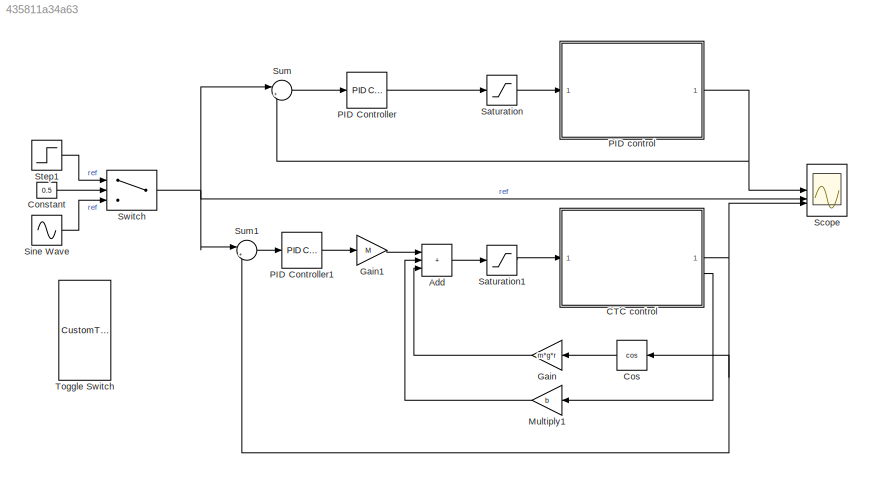
MODEL slx_435811a34a63
KIND model
CONFIG AbsTol = auto
CONFIG EnableMultiTasking = off
CONFIG FixedStep = auto
CONFIG MaxStep = auto
CONFIG MinStep = auto
CONFIG PreLoadFcn = M = 2;\nm = 1;\nr = 0.1;\nb = 0.5;\ng = 9.8
CONFIG RelTol = 1e-3
CONFIG SampleTimeConstraint = Unconstrained
CONFIG SolverName = VariableStepAuto
CONFIG StartTime = 0.0
CONFIG StopTime = 10.0
BLOCK [Sum] Add
  IconShape = rectangular
  Inputs = +++
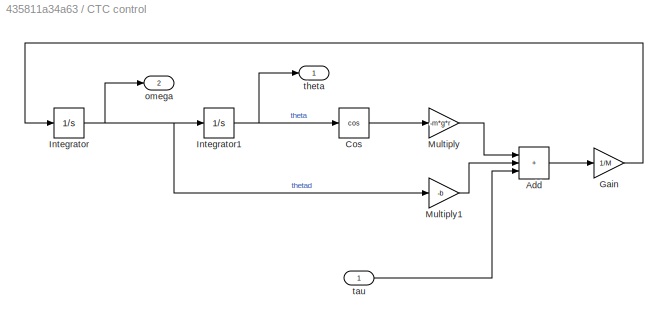
BLOCK [SubSystem] CTC control
BLOCK [Sum] CTC control/Add
  IconShape = rectangular
  Inputs = +++
BLOCK [Trigonometry] CTC control/Cos
  Operator = cos
BLOCK [Gain] CTC control/Gain
  Gain = 1/M
BLOCK [Integrator] CTC control/Integrator
BLOCK [Integrator] CTC control/Integrator1
BLOCK [Gain] CTC control/Multiply
  Gain = -m*g*r
BLOCK [Gain] CTC control/Multiply1
  Gain = -b
BLOCK [Outport] CTC control/omega
  Port = 2
BLOCK [Inport] CTC control/tau
BLOCK [Outport] CTC control/theta
BLOCK [Constant] Constant
  Value = 0.5
BLOCK [Trigonometry] Cos
  Operator = cos
BLOCK [Gain] Gain
  Gain = m*g*r
BLOCK [Gain] Gain1
  Gain = M
BLOCK [Gain] Multiply1
  Gain = b
BLOCK [Reference] PID Controller  REF=slpidlib/PID Controller
  LibrarySourceBlock = simulink/Continuous/PID Controller
  SourceBlock = slpidlib/PID Controller
  SourceType = PID 1dof
BLOCK [Reference] PID Controller1  REF=slpidlib/PID Controller
  LibrarySourceBlock = simulink/Continuous/PID Controller
  SourceBlock = slpidlib/PID Controller
  SourceType = PID 1dof
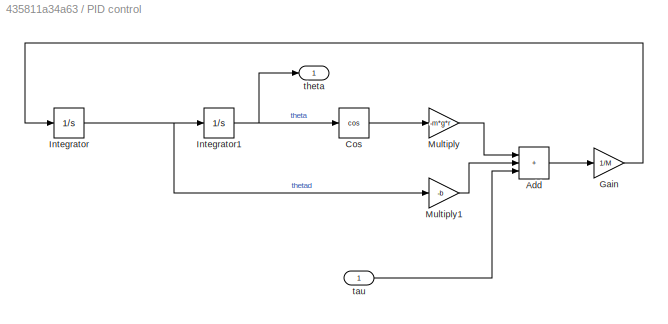
BLOCK [SubSystem] PID control
BLOCK [Sum] PID control/Add
  IconShape = rectangular
  Inputs = +++
BLOCK [Trigonometry] PID control/Cos
  Operator = cos
BLOCK [Gain] PID control/Gain
  Gain = 1/M
BLOCK [Integrator] PID control/Integrator
BLOCK [Integrator] PID control/Integrator1
BLOCK [Gain] PID control/Multiply
  Gain = -m*g*r
BLOCK [Gain] PID control/Multiply1
  Gain = -b
BLOCK [Inport] PID control/tau
BLOCK [Outport] PID control/theta
BLOCK [Saturate] Saturation
  LowerLimit = -50
  UpperLimit = 50
BLOCK [Saturate] Saturation1
  LowerLimit = -50
  UpperLimit = 50
BLOCK [Scope] Scope
  ActiveDisplayYMaximum = 1.4232366454960073
  ActiveDisplayYMinimum = -1.7886724197524937
  Floating = off
  GraphicalSettings = {"Style":{"BackgroundColor":[0.12941176470588237,0.12941176470588237,0.12941176470588237],"AxesColor":[0.07058823529411765,0.07058823529411765,0.07058823529411765],"LabelsColor":[0.8509803921568627,0.8509803921568627,0.8509803921568627],"PreserveColors":false,"Visible":[true,true,true],"LineStyle":["-","-","-"],"LineWidth":[1.5,1.5,1.5],"BarWidth":[0.9,0.9,0.9],"LineColor":["auto","auto","auto"],"...<+2246ch>
  MultipleDisplayCache = [{"MaxYLimMag":1.3253643835268949,"MaxYLimReal":1.4232366454960073,"MinYLimMag":0,"MinYLimReal":-1.7886724197524937,"PlotAsMagnitudePhase":false,"ShowGrid":true,"ShowLegend":true,"Title":"%<SignalLabel>","YLabel":""}]
  NumInputPorts = 3
  ScopeFrameLocation = window
  ShowLegend = on
  WasSavedAsWebScope = on
  WindowPosition = [799.000000,489.000000,560.000000,420.000000,]
BLOCK [Sin] Sine Wave
  Frequency = 5
  SampleTime = 0
BLOCK [Step] Step1
  SampleTime = 0
BLOCK [Sum] Sum
  Inputs = |+-
BLOCK [Sum] Sum1
  Inputs = |+-
BLOCK [Switch] Switch
  Criteria = u2 > Threshold
  InputSameDT = off
  SaturateOnIntegerOverflow = off
  Threshold = 1
BLOCK [CustomTuningWebBlock] Toggle Switch
  Configuration = {"components":[{"name":"CustomSwitchStateComponent","settings":{"position":[0,0,1,1],"showAllLabels":1,"states":[{"HitRegion":{"position":[0.5,0,1,0.5]},"Image":{"position":[0,0.24928571428571428,0.5014285714285714,1],"size":[0.5014285714285714,1],"src":"data:image\/svg+xml;base64,PHN2ZyB4bWxucz0iaHR0cDovL3d3dy53My5vcmcvMjAwMC9zdmciIHhtbG5zOnhsaW5rPSJodHRwOi8vd3d3LnczLm9yZy8xOTk5L3hsaW5rIiB2aWV3Qm...<+9296ch>
  LabelPosition = Hide
  ShowInitialText = on
LINE Add:1 -> Saturation1:1
LINE CTC control/Add:1 -> CTC control/Gain:1
LINE CTC control/Cos:1 -> CTC control/Multiply:1
LINE CTC control/Gain:1 -> CTC control/Integrator:1
NET CTC control/Integrator1:1 -> CTC control/Cos:1, CTC control/theta:1
NET CTC control/Integrator:1 -> CTC control/Integrator1:1, CTC control/Multiply1:1, CTC control/omega:1
LINE CTC control/Multiply1:1 -> CTC control/Add:2
LINE CTC control/Multiply:1 -> CTC control/Add:1
LINE CTC control/tau:1 -> CTC control/Add:3
NET CTC control:1 -> Cos:1, Scope:3, Sum1:2
LINE CTC control:2 -> Multiply1:1
LINE Constant:1 -> Switch:2
LINE Cos:1 -> Gain:1
LINE Gain1:1 -> Add:1
LINE Gain:1 -> Add:3
LINE Multiply1:1 -> Add:2
LINE PID Controller1:1 -> Gain1:1
LINE PID Controller:1 -> Saturation:1
LINE PID control/Add:1 -> PID control/Gain:1
LINE PID control/Cos:1 -> PID control/Multiply:1
LINE PID control/Gain:1 -> PID control/Integrator:1
NET PID control/Integrator1:1 -> PID control/Cos:1, PID control/theta:1
NET PID control/Integrator:1 -> PID control/Integrator1:1, PID control/Multiply1:1
LINE PID control/Multiply1:1 -> PID control/Add:2
LINE PID control/Multiply:1 -> PID control/Add:1
LINE PID control/tau:1 -> PID control/Add:3
NET PID control:1 -> Scope:1, Sum:2
LINE Saturation1:1 -> CTC control:1
LINE Saturation:1 -> PID control:1
LINE Sine Wave:1 -> Switch:3
LINE Step1:1 -> Switch:1
LINE Sum1:1 -> PID Controller1:1
LINE Sum:1 -> PID Controller:1
NET Switch:1 -> Scope:2, Sum1:1, Sum:1
note: NET lines group one-source signal fan-out (src -> all destinations, sorted); 1:1 wires keep LINE
